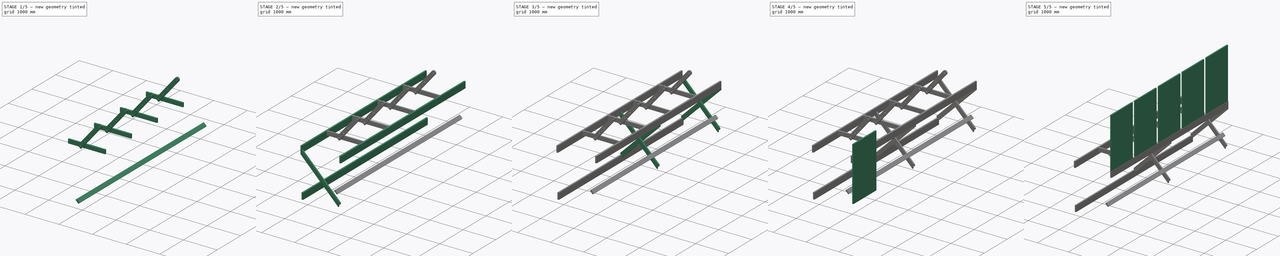
[diagram: build sequence overview — one tinted view per stage of 5, left to right]
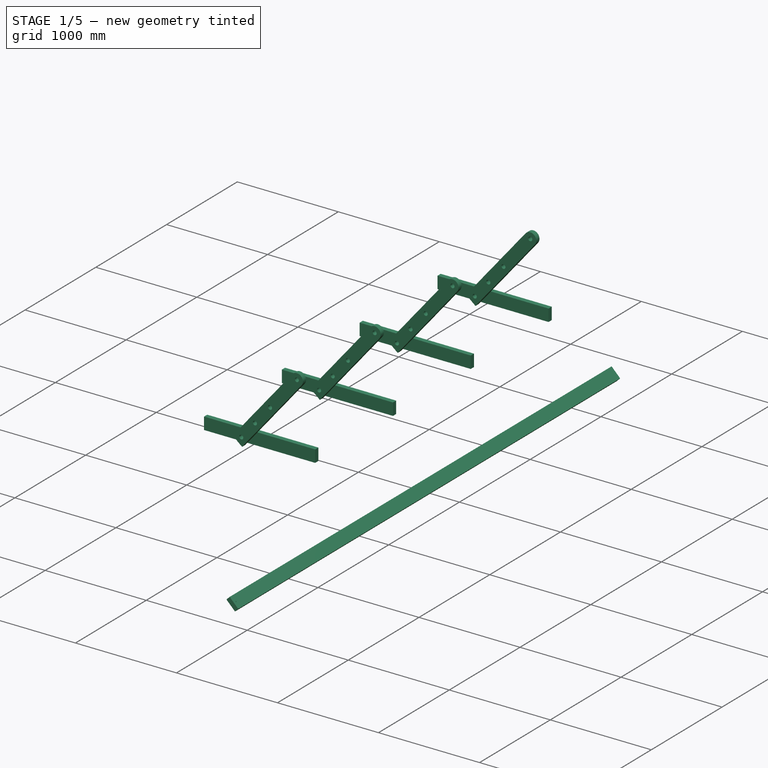
[diagram: stage 1 of 5 — iso view after this stage's code; geometry added in this stage tinted green]
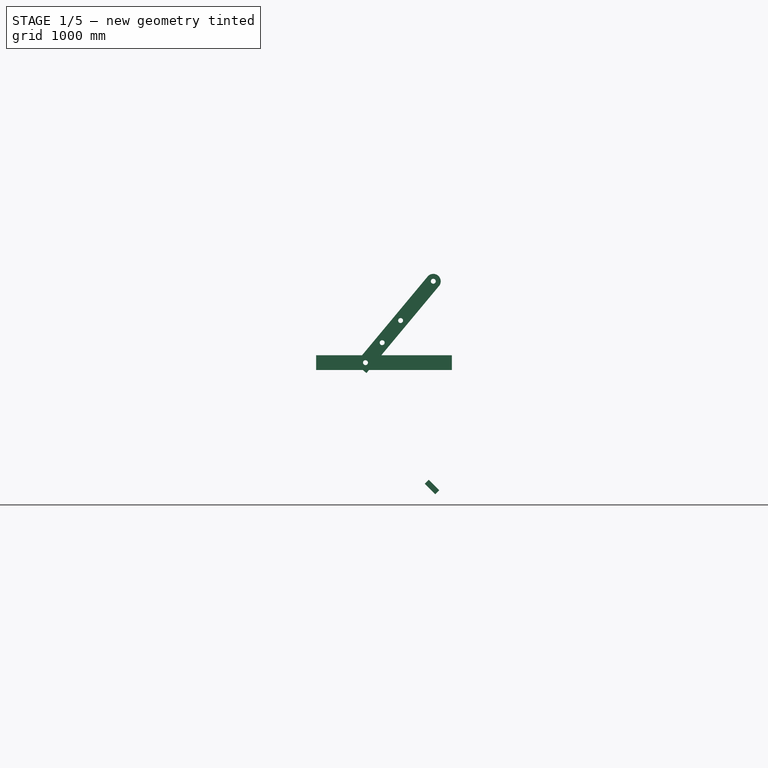
[diagram: stage 1 of 5 — front view after this stage's code; geometry added in this stage tinted green]
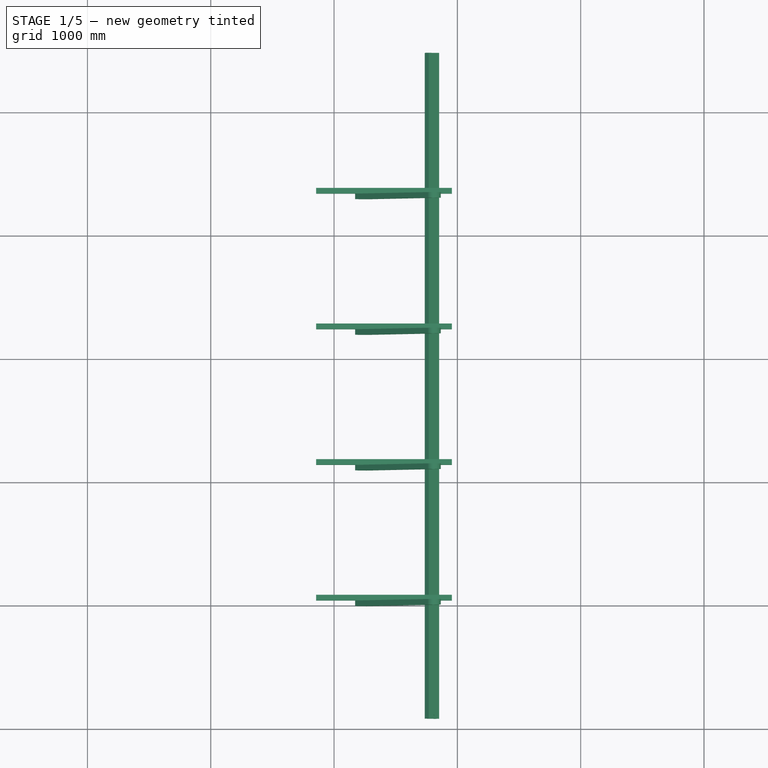
[diagram: stage 1 of 5 — top view after this stage's code; geometry added in this stage tinted green]
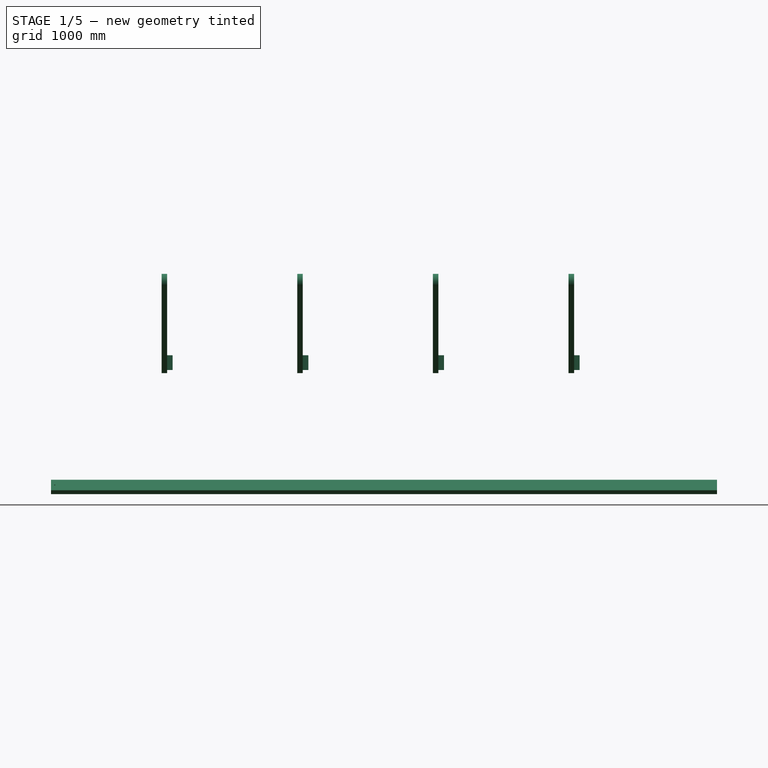
[diagram: stage 1 of 5 — right view after this stage's code; geometry added in this stage tinted green]
FCSTD DOCUMENT  (FreeCAD 0.16R)
Label: solar_mount2
License: All rights reserved
LicenseURL: http://en.wikipedia.org/wiki/All_rights_reserved
objects: Part::FeaturePython×9, Sketcher::SketchObject×7, PartDesign::Pad×6, Part::Cut×4, Part::Cylinder×4, App::DocumentObjectGroup×4, Part::Fuse×2, Part::Box×2, PartDesign::Pocket×1
note: 42 computed .brp shape members not serialized (recipe doc carries the construction recipe); baked Part::Feature solids carry a one-line shape summary decoded from their .brp

FEATURE [App::DocumentObjectGroup] Group  label="Panels"
  Group = -> [Cut003,Array]
FEATURE [App::DocumentObjectGroup] Group003  label="Kortsidokryss"
  Group = -> [Clone009,Clone008,Group001]
FEATURE [App::DocumentObjectGroup] Group004  label="Löpare"
  Group = -> [Box,Clone,Clone001,Clone002]
FEATURE [Part::Box] Box001  label="Cube"
  Height = 120
  Length = 45
  Placement = pos=(-179.365,83.6392,179.365) rot=(0,-1,0;0.785398rad)
  Width = 5400
FEATURE [Sketcher::SketchObject] Sketch005
  Placement = pos=(-147.545,83.6392,211.185) rot=(0.357407,0.357407,0.862856;1.71777rad)
  Support = -> Box001 [Face2]
  sketch-geometry (1):
    g0: Circle CenterX=30 CenterY=60 CenterZ=0 NormalX=0 NormalY=0 NormalZ=1 Radius=4.5
  constraints (3):
    c: DistanceY(g-1,g0) = 60
    c: DistanceX(g-1,g0) = 30
    c: Radius(g0) = 4.5
FEATURE [PartDesign::Pocket] Pocket001  label="Use ShapeBinder in 0.17 to mate"
  Length = 50
  Placement = pos=(-179.365,83.6392,179.365) rot=(0,-1,0;0.785398rad)
  Sketch = -> Sketch005
  Type = 0
FEATURE [Sketcher::SketchObject] Sketch007
  Placement = pos=(-45,1070,1185.59) rot=(1,0,0;1.5708rad)
  sketch-geometry (5):
    g0: LineSegment StartX=0 StartY=0 StartZ=0 EndX=-1100 EndY=0 EndZ=0
    g1: LineSegment StartX=-1100 StartY=0 StartZ=0 EndX=-1100 EndY=120 EndZ=0
    g2: LineSegment StartX=-1100 StartY=120 StartZ=0 EndX=0 EndY=120 EndZ=0
    g3: LineSegment StartX=0 StartY=120 StartZ=0 EndX=0 EndY=0 EndZ=0
    g4: Circle CenterX=-700 CenterY=60 CenterZ=0 NormalX=0 NormalY=0 NormalZ=1 Radius=20
  constraints (14):
    c: Coincident(g0,g1)
    c: Coincident(g1,g2)
    c: Coincident(g2,g3)
    c: Coincident(g3,g0)
    c: Horizontal(g0)
    c: Horizontal(g2)
    c: Vertical(g1)
    c: Vertical(g3)
    c: Coincident(g0,g-1)
    c: DistanceY(g3,g3) = 120
    c: DistanceX(g0,g0) = 1100
    c: Distance(g4,g0) = 60
    c: Distance(g4,g3) = 700
    c: Radius(g4) = 20
FEATURE [PartDesign::Pad] Pad004
  Length = 45
  Length2 = 100
  Placement = pos=(-45,1070,1185.59) rot=(1,0,0;1.5708rad)
  Sketch = -> Sketch007
  Type = 0
FEATURE [Part::FeaturePython] Array002  label="Tvärstag"  # Draft array (typed FeaturePython)
  Angle = 360
  ArrayType = 0
  Axis = (0,0,1)
  Base = -> Pad004
  Center = (0,0,0)
  Fuse = false
  IntervalAxis = (0,0,0)
  IntervalX = (1,0,0)
  IntervalY = (0,1100,0)
  IntervalZ = (0,0,0)
  NumberPolar = 1
  NumberX = 1
  NumberY = 4
  NumberZ = 1
FEATURE [Sketcher::SketchObject] Sketch006  label="Stagskiss"
  Placement = pos=(-45,1025,1305.59) rot=(1,0,0;1.5708rad)
  sketch-geometry (24):
    g0: LineSegment [constr] StartX=-700 StartY=0 StartZ=0 EndX=0 EndY=0 EndZ=0
    g1: LineSegment [constr] StartX=0 StartY=0 StartZ=0 EndX=0 EndY=600 EndZ=0
    g2: LineSegment [constr] StartX=0 StartY=0 StartZ=0 EndX=-424.264 EndY=424.264 EndZ=0
    g3: LineSegment [constr] StartX=-424.264 StartY=424.264 StartZ=0 EndX=-530.33 EndY=318.198 EndZ=0
    g4: LineSegment [constr] StartX=0 StartY=600 StartZ=0 EndX=-150 EndY=600 EndZ=0
    g5: LineSegment [constr] StartX=-700 StartY=0 StartZ=0 EndX=-700 EndY=-60 EndZ=0
    g6: LineSegment [constr] StartX=-700 StartY=-60 StartZ=0 EndX=-530.33 EndY=318.198 EndZ=0
    g7: LineSegment StartX=-784.504 StartY=-67.6822 StartZ=0 EndX=-196.093 EndY=638.411 EndZ=0
    g8: LineSegment StartX=-103.907 StartY=561.589 StartZ=0 EndX=-692.318 EndY=-144.504 EndZ=0
    g9: LineSegment StartX=-692.318 StartY=-144.504 StartZ=0 EndX=-784.504 EndY=-67.6822 EndZ=0
    g10: LineSegment [constr] StartX=-196.093 StartY=638.411 StartZ=0 EndX=-150 EndY=600 EndZ=0
    g11: LineSegment [constr] StartX=-150 StartY=600 StartZ=0 EndX=-103.907 EndY=561.589 EndZ=0
    g12: ArcOfCircle CenterX=-150 CenterY=600 CenterZ=0 NormalX=0 NormalY=0 NormalZ=1 Radius=60 StartAngle=5.58845 EndAngle=8.73004
    g13: Circle CenterX=-700 CenterY=-60 CenterZ=0 NormalX=0 NormalY=0 NormalZ=1 Radius=20
    g14: Circle CenterX=-150 CenterY=600 CenterZ=0 NormalX=0 NormalY=0 NormalZ=1 Radius=20
    g15: LineSegment [constr] StartX=0 StartY=0 StartZ=0 EndX=-229.61 EndY=554.328 EndZ=0
    g16: LineSegment [constr] StartX=-229.61 StartY=554.328 StartZ=0 EndX=-368.192 EndY=496.925 EndZ=0
    g17: LineSegment [constr] StartX=-368.192 StartY=496.925 StartZ=0 EndX=-700 EndY=-60 EndZ=0
    g18: LineSegment [constr] StartX=-565.016 StartY=101.98 StartZ=0 EndX=-150 EndY=600 EndZ=0
    g19: LineSegment [constr] StartX=-150 StartY=600 StartZ=0 EndX=-415.365 EndY=281.562 EndZ=0
    g20: LineSegment [constr] StartX=-415.365 StartY=281.562 StartZ=0 EndX=-369.272 EndY=243.151 EndZ=0
    g21: LineSegment [constr] StartX=-565.016 StartY=101.98 StartZ=0 EndX=-518.923 EndY=63.5692 EndZ=0
    g22: Circle CenterX=-565.016 CenterY=101.98 CenterZ=0 NormalX=0 NormalY=0 NormalZ=1 Radius=20
    g23: Circle CenterX=-415.365 CenterY=281.562 CenterZ=0 NormalX=0 NormalY=0 NormalZ=1 Radius=20
  constraints (64):
    c: PointOnObject(g0,g-1)
    c: Coincident(g0,g-1)
    c: Coincident(g0,g1)
    c: PointOnObject(g1,g-2)
    c: Coincident(g-1,g2)
    c: Coincident(g2,g3)
    c: Coincident(g1,g4)
    c: Coincident(g0,g5)
    c: Vertical(g5)
    c: Coincident(g5,g6)
    c: Coincident(g6,g3)
    c: DistanceY(g5,g5) = 60
    c: Equal(g3,g4)
    c: Angle(g3,g2) = 1.5708
    c: Angle(g4,g1) = 1.5708
    c: Equal(g1,g2)
    c: DistanceX(g0,g0) = 700
    c: Angle(g2,g0) = 0.785398
    c: DistanceY(g1,g1) = 600
    c: DistanceX(g4,g4) = 150
    c: Coincident(g8,g9)
    c: Coincident(g9,g7)
    c: Parallel(g8,g7)
    c: Coincident(g10,g7)
    c: Coincident(g10,g4)
    c: Coincident(g11,g4)
    c: Coincident(g11,g8)
    c: Parallel(g10,g11)
    c: Angle(g11,g8) = 1.5708
    c: Parallel(g10,g9)
    c: Distance(g5,g9) = 60
    c: Distance(g5,g8) = 60
    c: Coincident(g12,g4)
    c: Coincident(g12,g8)
    c: Coincident(g12,g7)
    c: Distance(g8,g7) = 120
    c: Coincident(g13,g5)
    c: Coincident(g14,g4)
    c: Radius(g14) = 20
    c: Coincident(g-1,g15)
    c: Coincident(g15,g16)
    c: Coincident(g16,g17)
    c: Coincident(g17,g5)
    c: Equal(g16,g4)
    c: Equal(g15,g1)
    c: Angle(g16,g15) = 1.5708
    c: Angle(g15,g2) = 0.392699
    c: Coincident(g18,g4)
    c: Coincident(g18,g19)
    c: Equal(g19,g6)
    c: Equal(g18,g17)
    c: Coincident(g20,g19)
    c: PointOnObject(g20,g8)
    c: Equal(g20,g11)
    c: Coincident(g21,g18)
    c: PointOnObject(g21,g8)
    c: Equal(g21,g11)
    c: Angle(g21,g18) = 1.5708
    c: Angle(g20,g18) = 1.5708
    c: Equal(g13,g14)
    c: Coincident(g22,g18)
    c: Coincident(g23,g19)
    c: Equal(g22,g23)
    c: Equal(g23,g14)
FEATURE [PartDesign::Pad] Pad005
  Length = 45
  Length2 = 100
  Placement = pos=(-45,1025,1305.59) rot=(1,0,0;1.5708rad)
  Sketch = -> Sketch006
  Type = 0
FEATURE [Part::FeaturePython] Array003  label="Justeringsstag"  # Draft array (typed FeaturePython)
  Angle = 360
  ArrayType = 0
  Axis = (0,0,1)
  Base = -> Pad005
  Center = (0,0,0)
  Fuse = false
  IntervalAxis = (0,0,0)
  IntervalX = (1,0,0)
  IntervalY = (0,1100,0)
  IntervalZ = (0,0,0)
  NumberPolar = 1
  NumberX = 1
  NumberY = 4
  NumberZ = 1
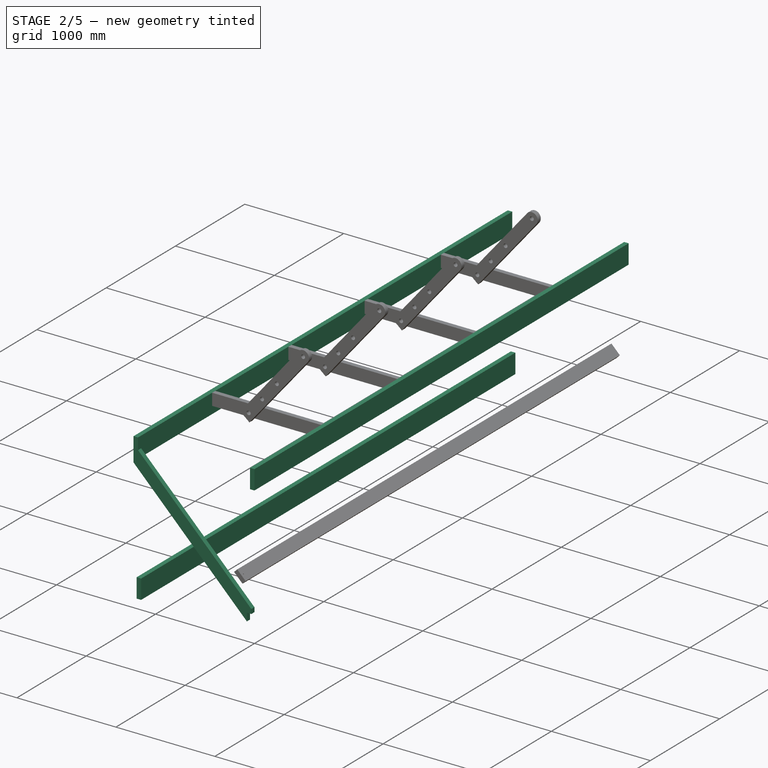
[diagram: stage 2 of 5 — iso view after this stage's code; geometry added in this stage tinted green]
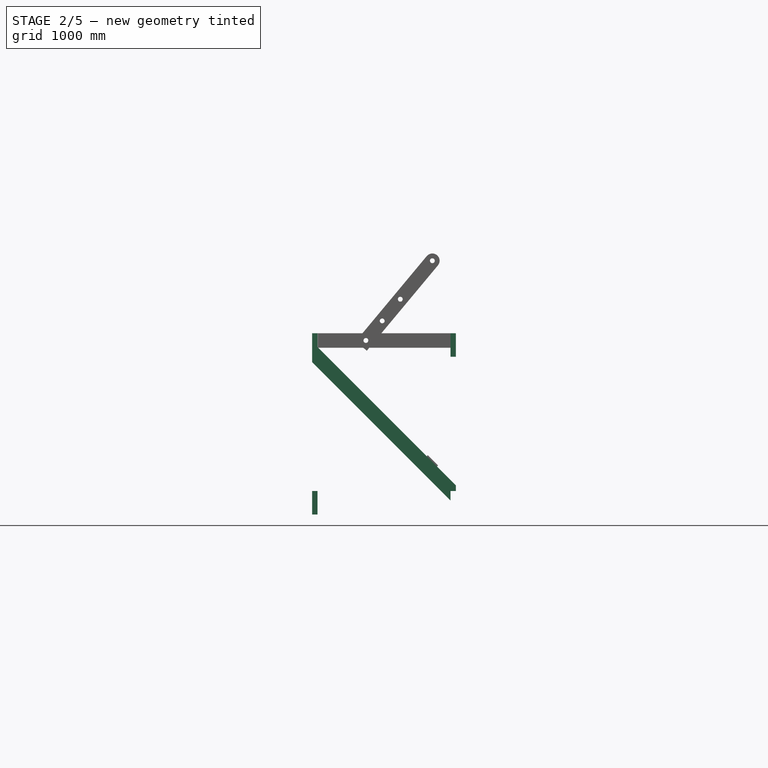
[diagram: stage 2 of 5 — front view after this stage's code; geometry added in this stage tinted green]
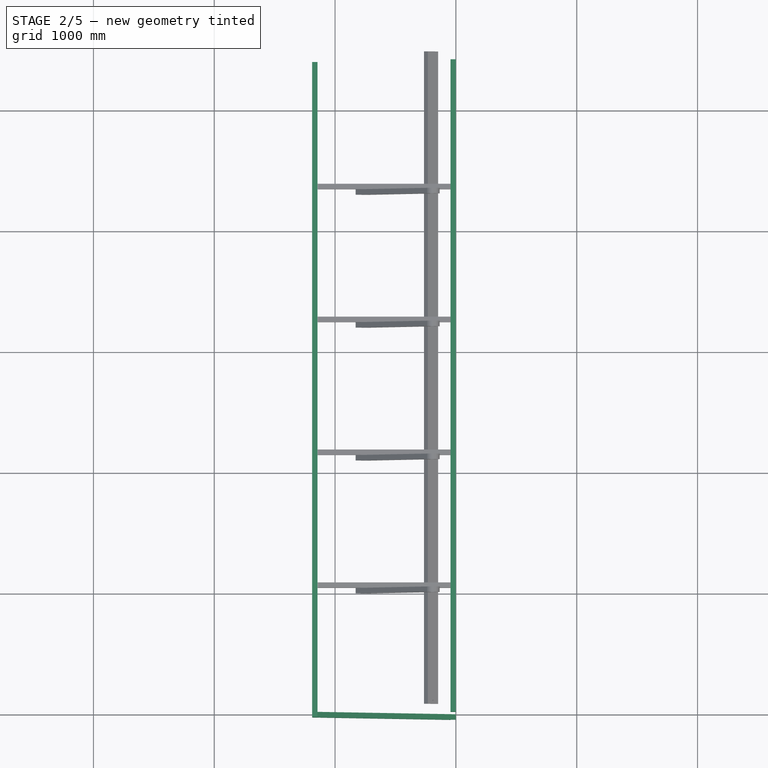
[diagram: stage 2 of 5 — top view after this stage's code; geometry added in this stage tinted green]
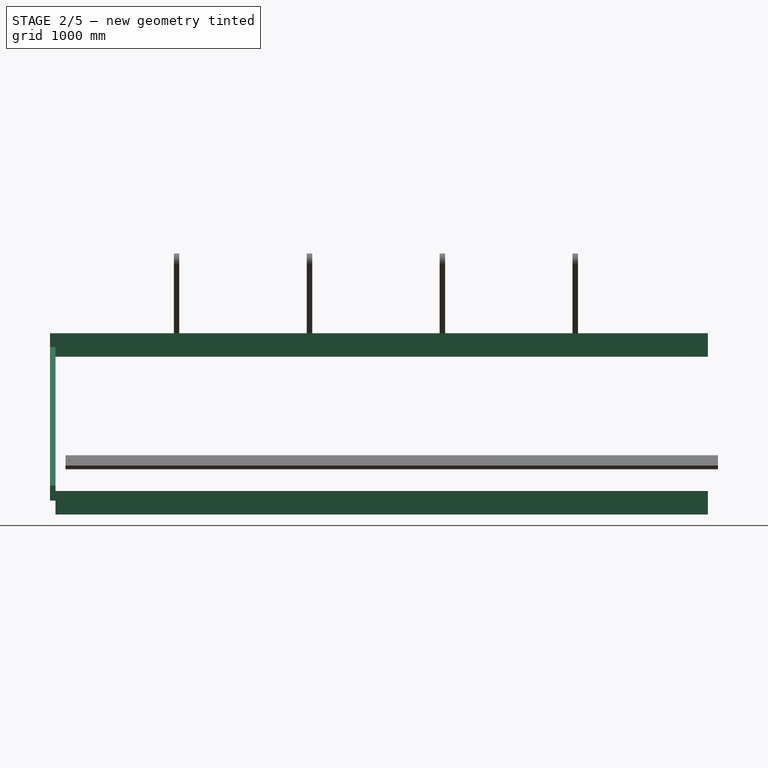
[diagram: stage 2 of 5 — right view after this stage's code; geometry added in this stage tinted green]
FEATURE [Sketcher::SketchObject] Sketch003
  Placement = pos=(0,0,0) rot=(1,0,0;1.5708rad)
  sketch-geometry (8):
    g0: LineSegment StartX=0 StartY=0 StartZ=0 EndX=-45 EndY=0 EndZ=0
    g1: LineSegment StartX=-45 StartY=0 StartZ=0 EndX=-45 EndY=-79.7056 EndZ=0
    g2: LineSegment StartX=-45 StartY=-79.7056 StartZ=0 EndX=-1190.29 EndY=1065.59 EndZ=0
    g3: LineSegment StartX=-1145.29 StartY=1190.29 StartZ=0 EndX=0 EndY=45 EndZ=0
    g4: LineSegment StartX=0 StartY=45 StartZ=0 EndX=0 EndY=0 EndZ=0
    g5: LineSegment StartX=-1190.29 StartY=1065.59 StartZ=0 EndX=-1190.29 EndY=1110.59 EndZ=0
    g6: LineSegment StartX=-1190.29 StartY=1110.59 StartZ=0 EndX=-1145.29 EndY=1110.59 EndZ=0
    g7: LineSegment StartX=-1145.29 StartY=1110.59 StartZ=0 EndX=-1145.29 EndY=1190.29 EndZ=0
  constraints (23):
    c: Coincident(g-1,g0)
    c: PointOnObject(g0,g-1)
    c: Coincident(g0,g1)
    c: Vertical(g1)
    c: Coincident(g1,g2)
    c: Coincident(g3,g4)
    c: Coincident(g4,g0)
    c: Vertical(g4)
    c: Distance(g3,g2) = 120
    c: Angle(g1,g2) = 0.785398
    c: Parallel(g2,g3)
    c: DistanceY(g1,g3) = 1270
    c: DistanceX(g0,g0) = 45
    c: Coincident(g2,g5)
    c: Vertical(g5)
    c: Coincident(g5,g6)
    c: Horizontal(g6)
    c: Coincident(g6,g7)
    c: Coincident(g7,g3)
    c: Vertical(g7)
    c: Equal(g6,g0)
    c: Equal(g5,g4)
    c: DistanceY(g4,g4) = 45
FEATURE [PartDesign::Pad] Pad003  label="Korsstag kortsidor"
  Length = 45
  Length2 = 100
  Placement = pos=(0,0,0) rot=(1,0,0;1.5708rad)
  Sketch = -> Sketch003
  Type = 0
FEATURE [Part::Box] Box  label="45x270"
  Height = 195
  Length = 45
  Placement = pos=(-45,-45,-195) rot=(0,0,1;0rad)
  Width = 5400
FEATURE [Part::FeaturePython] Clone  label="Clone of 45x270"  # Draft clone (typed FeaturePython)
  Objects = -> [Box]
  Placement = pos=(-1190.29,-45.0001,1110.59) rot=(0,0,1;0rad)
  Scale = (1,1,1)
FEATURE [Part::FeaturePython] Clone001  label="Clone of 45x271"  # Draft clone (typed FeaturePython)
  Objects = -> [Box]
  Placement = pos=(-45,0,1110.59) rot=(0,0,1;0rad)
  Scale = (1,1,1)
FEATURE [Part::FeaturePython] Clone002  label="Clone of 45x272"  # Draft clone (typed FeaturePython)
  Objects = -> [Box]
  Placement = pos=(-1190.29,1e-12,-195) rot=(0,0,1;0rad)
  Scale = (1,1,1)
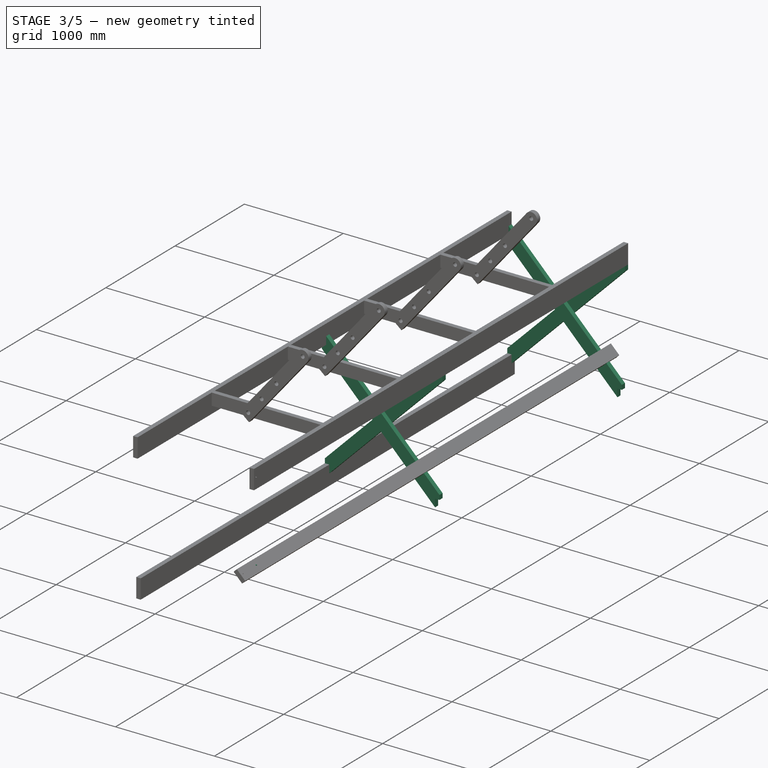
[diagram: stage 3 of 5 — iso view after this stage's code; geometry added in this stage tinted green]
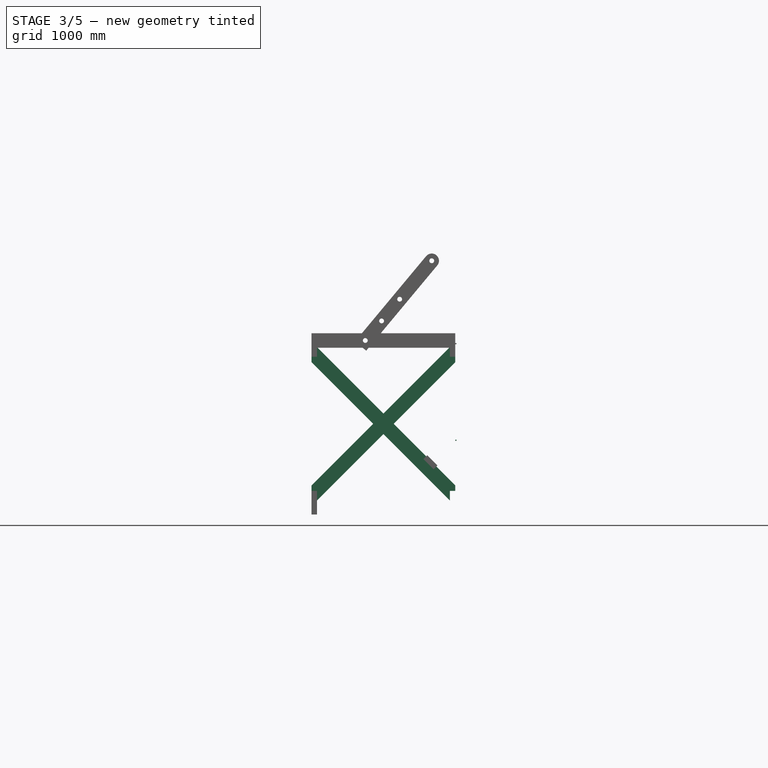
[diagram: stage 3 of 5 — front view after this stage's code; geometry added in this stage tinted green]
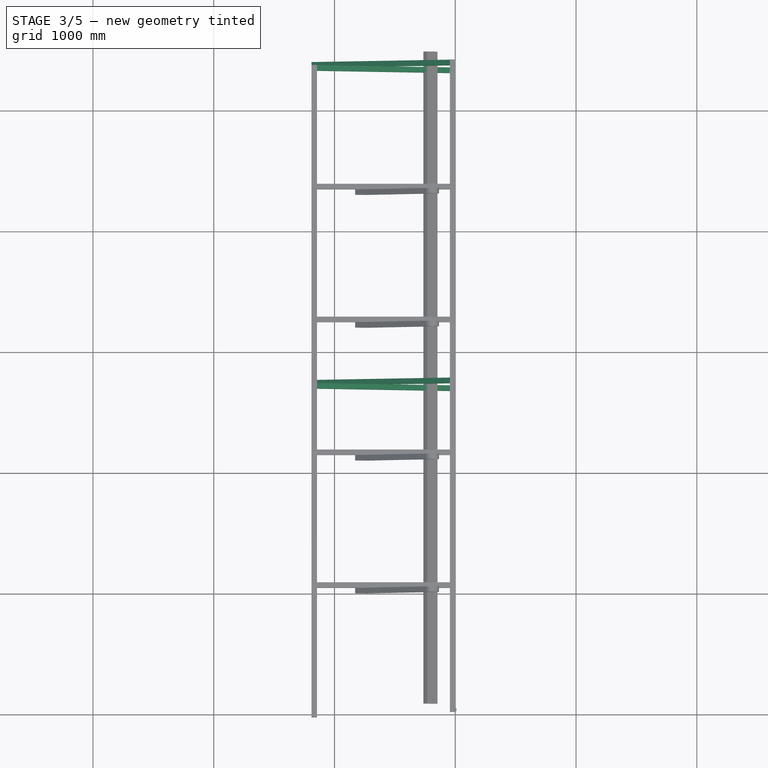
[diagram: stage 3 of 5 — top view after this stage's code; geometry added in this stage tinted green]
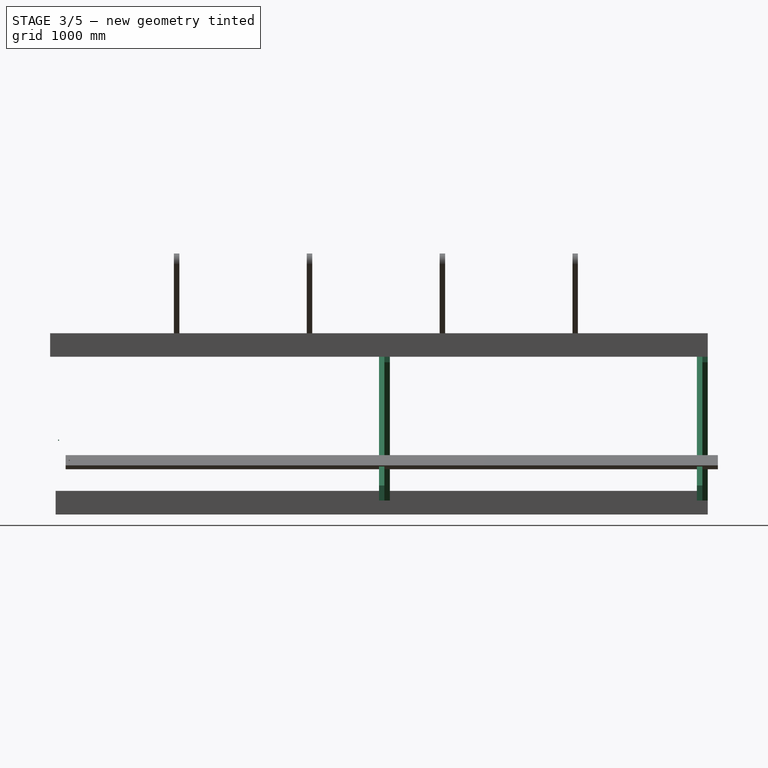
[diagram: stage 3 of 5 — right view after this stage's code; geometry added in this stage tinted green]
FEATURE [Part::Cylinder] Cylinder
  Angle = 360
  Height = 10
  Placement = pos=(0,25,420) rot=(0,1,0;1.5708rad)
  Radius = 4.5
FEATURE [Part::Cylinder] Cylinder001
  Angle = 360
  Height = 10
  Placement = pos=(0,25,1220) rot=(0,1,0;1.5708rad)
  Radius = 4.5
FEATURE [Part::Fuse] Fusion
  Base = -> Cylinder
  Tool = -> Cylinder001
FEATURE [Part::FeaturePython] Clone003  label="Clone of Korsstag kortsidor"  # Draft clone (typed FeaturePython)
  Objects = -> [Pad003]
  Placement = pos=(-1190.29,1e-12,0) rot=(0,0.707107,0.707107;3.14159rad)
  Scale = (1,1,1)
FEATURE [App::DocumentObjectGroup] Group001  label="Kortsidakryss"
  Group = -> [Clone003,Pad003]
FEATURE [Part::FeaturePython] Clone008  label="Clone of Kortsidakryss"  # Draft clone (typed FeaturePython)
  Objects = -> [Group001]
  Placement = pos=(0,5355,0) rot=(0,0,1;0rad)
  Scale = (1,1,1)
FEATURE [Part::FeaturePython] Clone009  label="Clone of Kortsidakryss001"  # Draft clone (typed FeaturePython)
  Objects = -> [Group001]
  Placement = pos=(0,2722.5,0) rot=(0,0,1;0rad)
  Scale = (1,1,1)
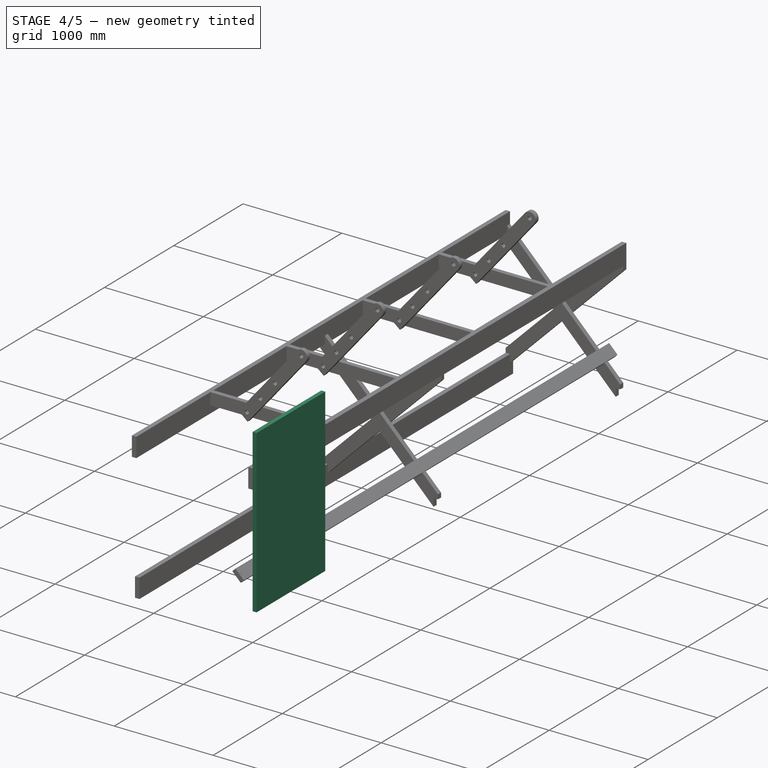
[diagram: stage 4 of 5 — iso view after this stage's code; geometry added in this stage tinted green]
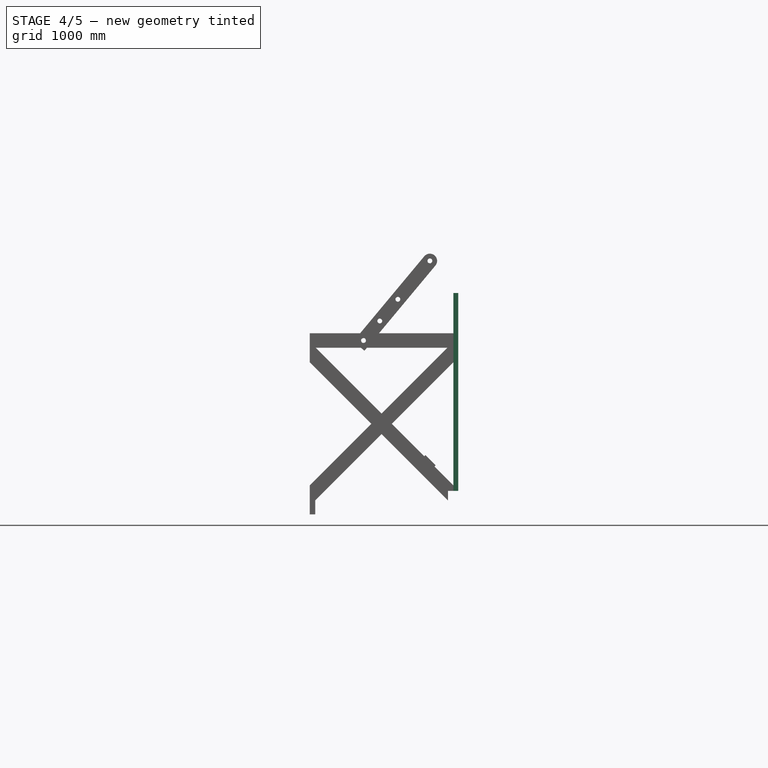
[diagram: stage 4 of 5 — front view after this stage's code; geometry added in this stage tinted green]
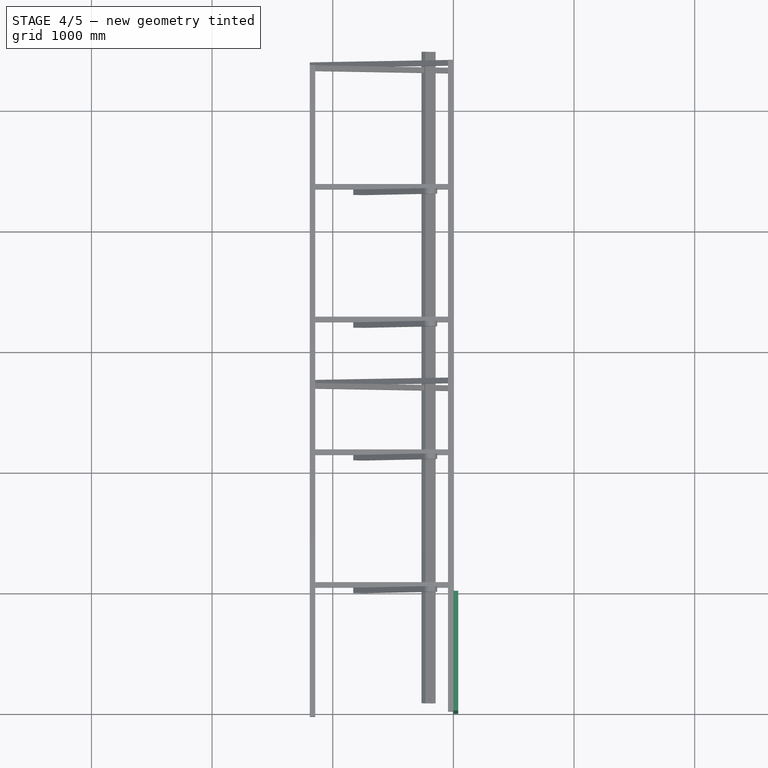
[diagram: stage 4 of 5 — top view after this stage's code; geometry added in this stage tinted green]
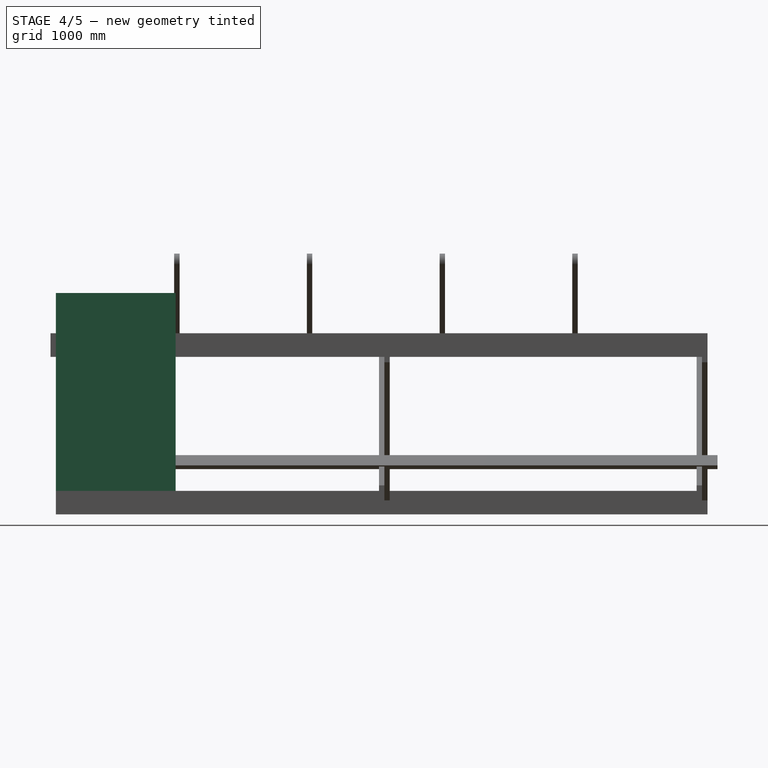
[diagram: stage 4 of 5 — right view after this stage's code; geometry added in this stage tinted green]
FEATURE [Sketcher::SketchObject] Sketch
  Placement = pos=(0,0,0) rot=(0.57735,0.57735,0.57735;2.0944rad)
  sketch-geometry (4):
    g0: LineSegment StartX=0 StartY=0 StartZ=0 EndX=992 EndY=0 EndZ=0
    g1: LineSegment StartX=992 StartY=0 StartZ=0 EndX=992 EndY=1640 EndZ=0
    g2: LineSegment StartX=992 StartY=1640 StartZ=0 EndX=0 EndY=1640 EndZ=0
    g3: LineSegment StartX=0 StartY=1640 StartZ=0 EndX=0 EndY=0 EndZ=0
  constraints (11):
    c: Coincident(g0,g1)
    c: Coincident(g1,g2)
    c: Coincident(g2,g3)
    c: Coincident(g3,g0)
    c: Horizontal(g0)
    c: Horizontal(g2)
    c: Vertical(g1)
    c: Vertical(g3)
    c: Coincident(g0,g-1)
    c: DistanceX(g0,g0) = 992
    c: DistanceY(g3,g3) = 1640
FEATURE [PartDesign::Pad] Pad  label="Bas"
  Length = 40
  Length2 = 100
  Placement = pos=(0,0,0) rot=(0.57735,0.57735,0.57735;2.0944rad)
  Sketch = -> Sketch
  Type = 0
FEATURE [Sketcher::SketchObject] Sketch001
  Placement = pos=(0,0,0) rot=(0.57735,0.57735,0.57735;2.0944rad)
  sketch-geometry (4):
    g0: LineSegment StartX=35 StartY=35 StartZ=0 EndX=957 EndY=35 EndZ=0
    g1: LineSegment StartX=957 StartY=35 StartZ=0 EndX=957 EndY=1605 EndZ=0
    g2: LineSegment StartX=957 StartY=1605 StartZ=0 EndX=35 EndY=1605 EndZ=0
    g3: LineSegment StartX=35 StartY=1605 StartZ=0 EndX=35 EndY=35 EndZ=0
  constraints (12):
    c: Coincident(g0,g1)
    c: Coincident(g1,g2)
    c: Coincident(g2,g3)
    c: Coincident(g3,g0)
    c: Horizontal(g0)
    c: Horizontal(g2)
    c: Vertical(g1)
    c: Vertical(g3)
    c: DistanceX(g-2,g0) = 35
    c: DistanceY(g-1,g0) = 35
    c: DistanceX(g0,g0) = 922
    c: DistanceY(g1,g1) = 1570
FEATURE [PartDesign::Pad] Pad001  label="Gröpner"
  Length = 20
  Length2 = 100
  Placement = pos=(0,0,0) rot=(0.57735,0.57735,0.57735;2.0944rad)
  Sketch = -> Sketch001
  Type = 0
FEATURE [Sketcher::SketchObject] Sketch002
  Placement = pos=(3,0,0) rot=(0.57735,0.57735,0.57735;2.0944rad)
  sketch-geometry (4):
    g0: LineSegment StartX=11 StartY=11 StartZ=0 EndX=981 EndY=11 EndZ=0
    g1: LineSegment StartX=981 StartY=11 StartZ=0 EndX=981 EndY=1629 EndZ=0
    g2: LineSegment StartX=981 StartY=1629 StartZ=0 EndX=11 EndY=1629 EndZ=0
    g3: LineSegment StartX=11 StartY=1629 StartZ=0 EndX=11 EndY=11 EndZ=0
  constraints (12):
    c: Coincident(g0,g1)
    c: Coincident(g1,g2)
    c: Coincident(g2,g3)
    c: Coincident(g3,g0)
    c: Horizontal(g0)
    c: Horizontal(g2)
    c: Vertical(g1)
    c: Vertical(g3)
    c: DistanceX(g-2,g0) = 11
    c: DistanceY(g-1,g0) = 11
    c: DistanceX(g0,g0) = 970
    c: DistanceY(g1,g1) = 1618
FEATURE [PartDesign::Pad] Pad002  label="Gröpkant"
  Length = 27
  Length2 = 100
  Placement = pos=(3,0,0) rot=(0.57735,0.57735,0.57735;2.0944rad)
  Sketch = -> Sketch002
  Type = 0
FEATURE [Part::Cut] Cut
  Base = -> Pad
  Tool = -> Pad001
FEATURE [Part::Cut] Cut001
  Base = -> Cut
  Tool = -> Pad002
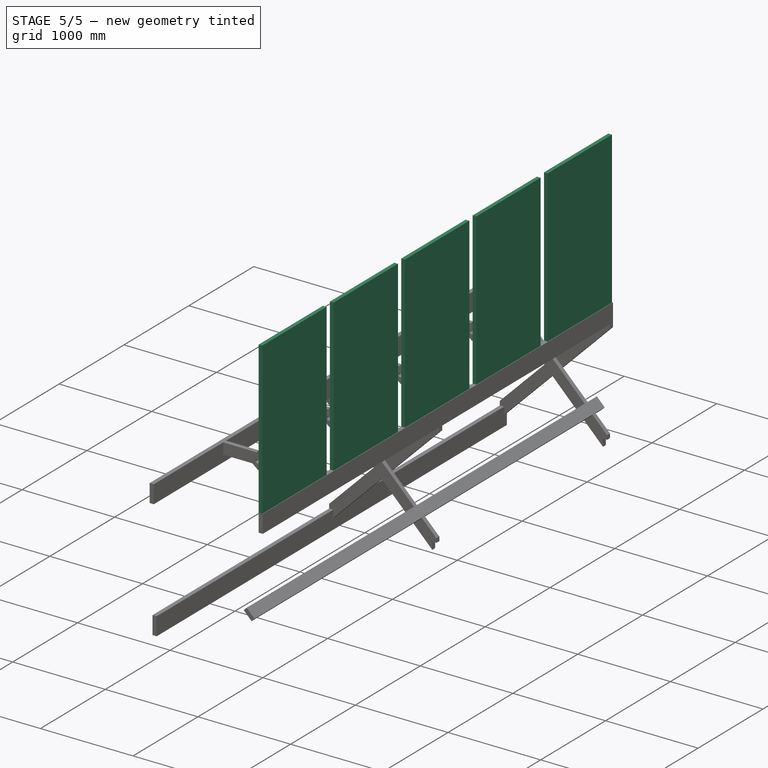
[diagram: stage 5 of 5 — iso view after this stage's code; geometry added in this stage tinted green]
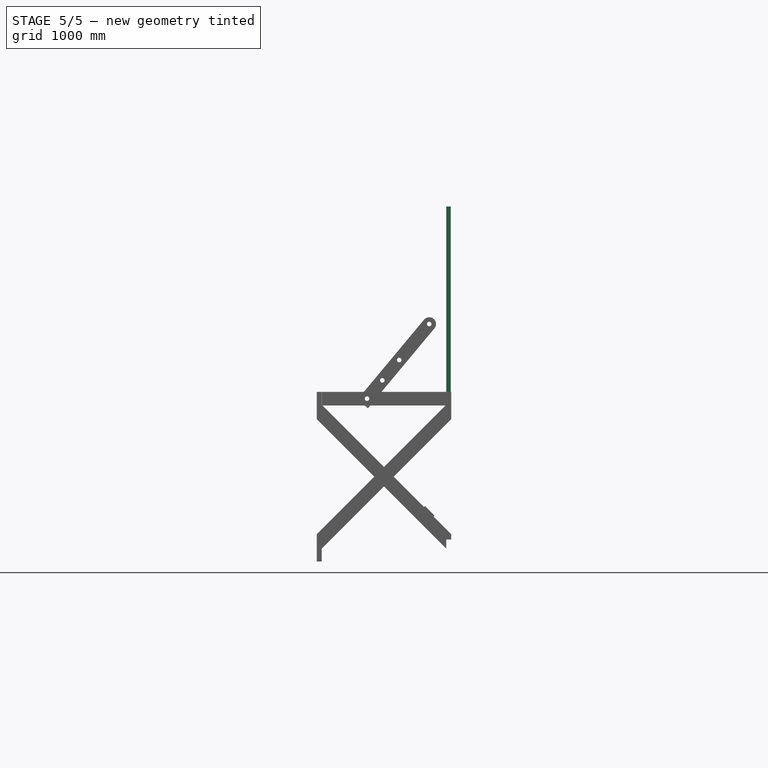
[diagram: stage 5 of 5 — front view after this stage's code; geometry added in this stage tinted green]
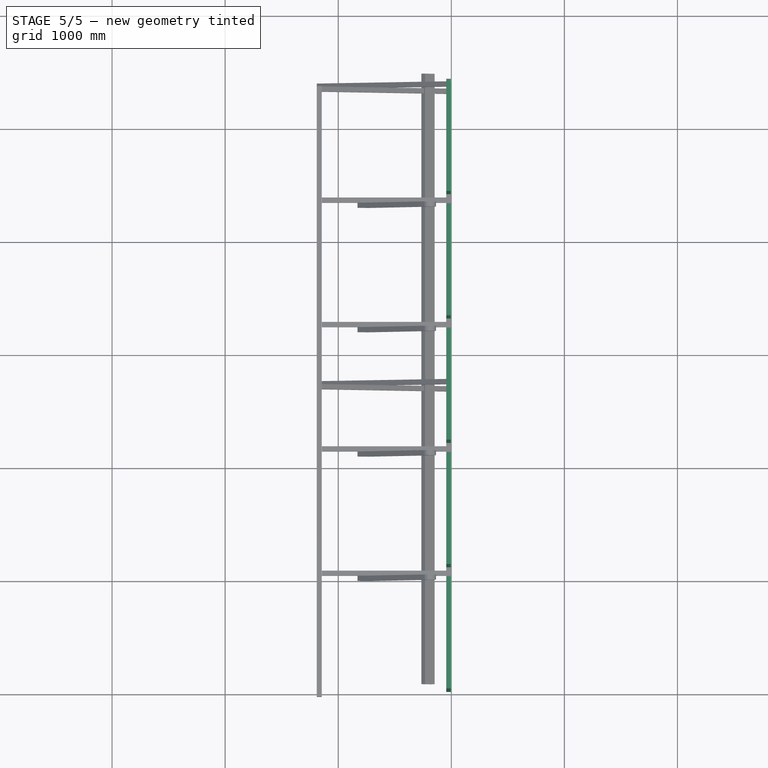
[diagram: stage 5 of 5 — top view after this stage's code; geometry added in this stage tinted green]
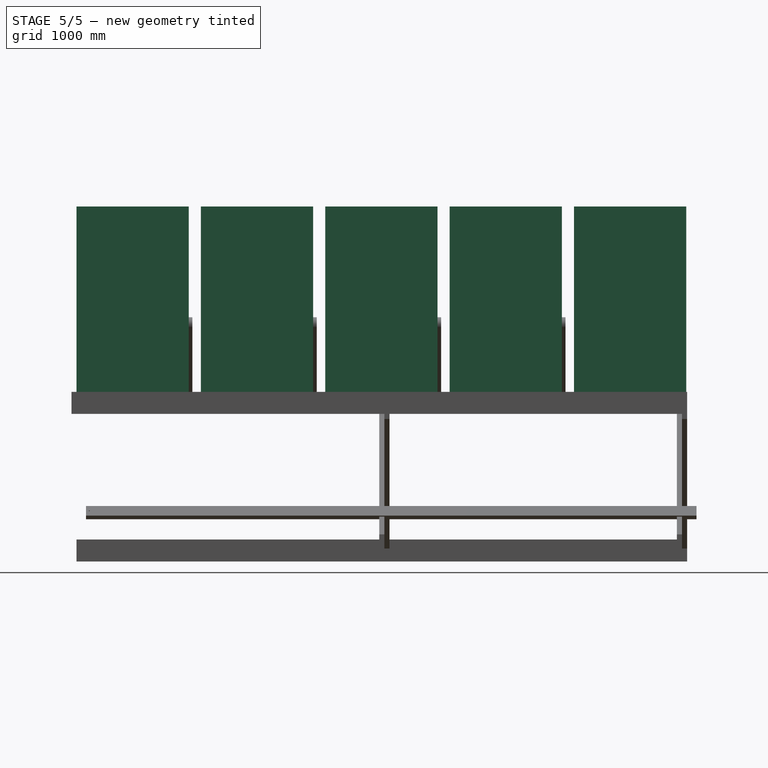
[diagram: stage 5 of 5 — right view after this stage's code; geometry added in this stage tinted green]
FEATURE [Part::Cylinder] Cylinder002
  Angle = 360
  Height = 10
  Placement = pos=(0,25,420) rot=(0,1,0;1.5708rad)
  Radius = 4.5
FEATURE [Part::Cylinder] Cylinder003
  Angle = 360
  Height = 10
  Placement = pos=(0,25,1220) rot=(0,1,0;1.5708rad)
  Radius = 4.5
FEATURE [Part::Fuse] Fusion001
  Base = -> Cylinder002
  Placement = pos=(0,942,0) rot=(0,0,1;0rad)
  Tool = -> Cylinder003
FEATURE [Part::Cut] Cut002
  Base = -> Cut001
  Tool = -> Fusion
FEATURE [Part::Cut] Cut003  label="Solar panel w holes"
  Base = -> Cut002
  Placement = pos=(-1.507e-09,0,1305.59) rot=(0,0,1;0rad)
  Tool = -> Fusion001
FEATURE [Part::FeaturePython] Array  # Draft array (typed FeaturePython)
  Angle = 360
  ArrayType = 0
  Axis = (0,0,1)
  Base = -> Cut003
  Center = (0,0,0)
  Fuse = false
  IntervalAxis = (0,0,0)
  IntervalX = (1,0,0)
  IntervalY = (0,1100,0)
  IntervalZ = (0,0,0)
  NumberPolar = 1
  NumberX = 1
  NumberY = 5
  NumberZ = 1
  Placement = pos=(-45,0,0) rot=(0,0,1;0rad)
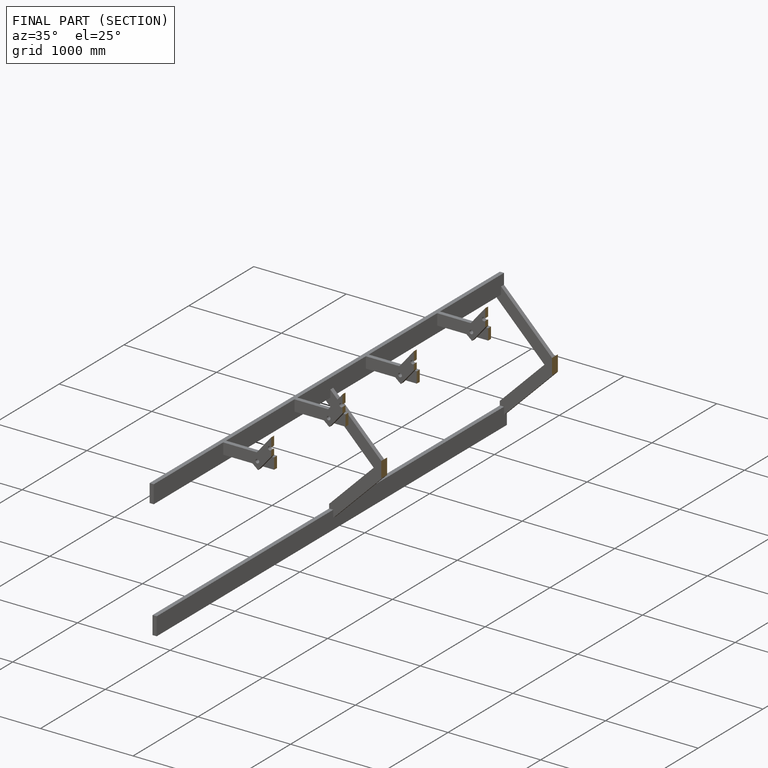
[diagram: finished part — half-section view (interior)]
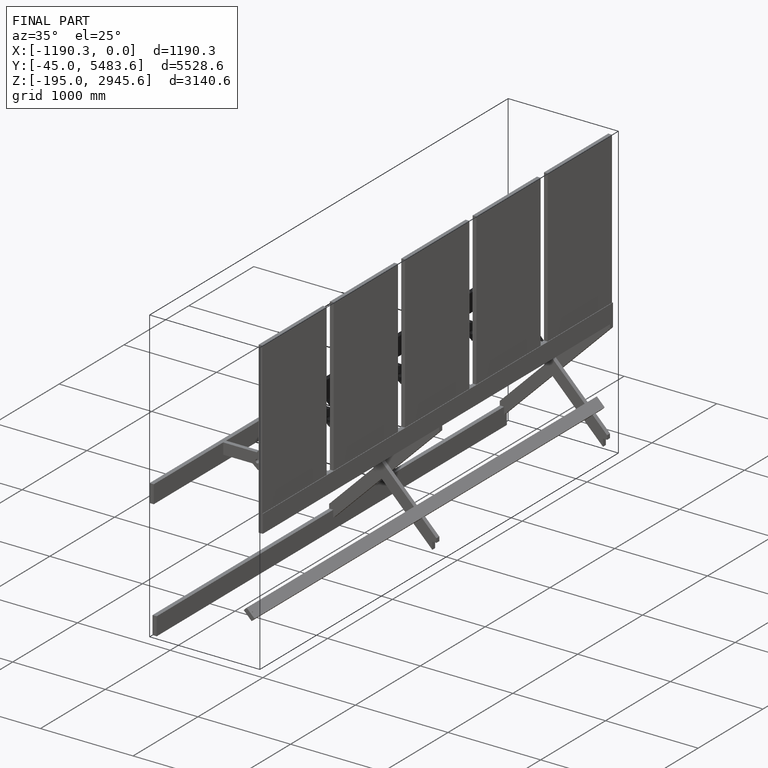
[diagram: finished part — iso view with bounding-box wireframe]
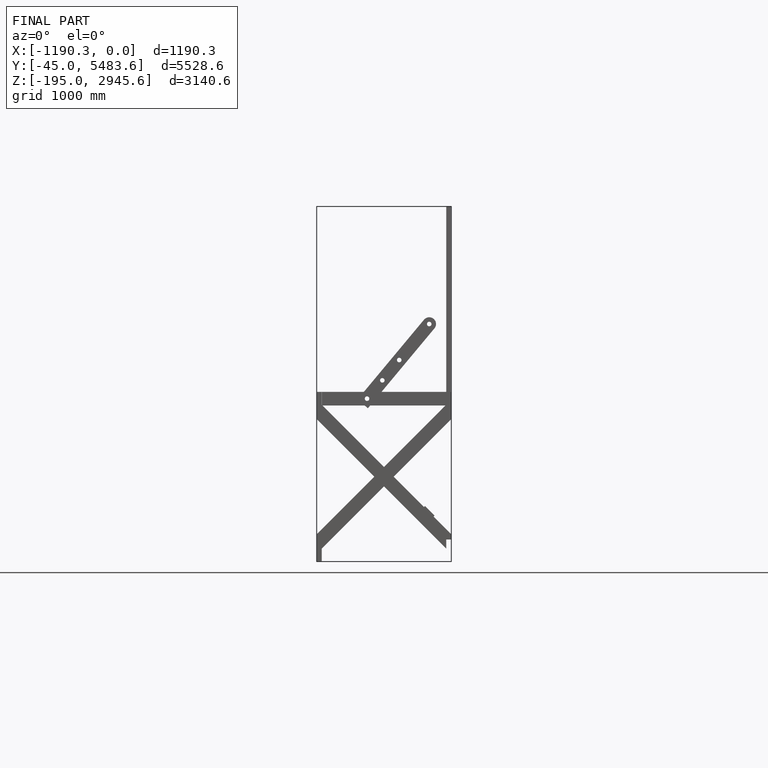
[diagram: finished part — front view with bounding-box wireframe]
